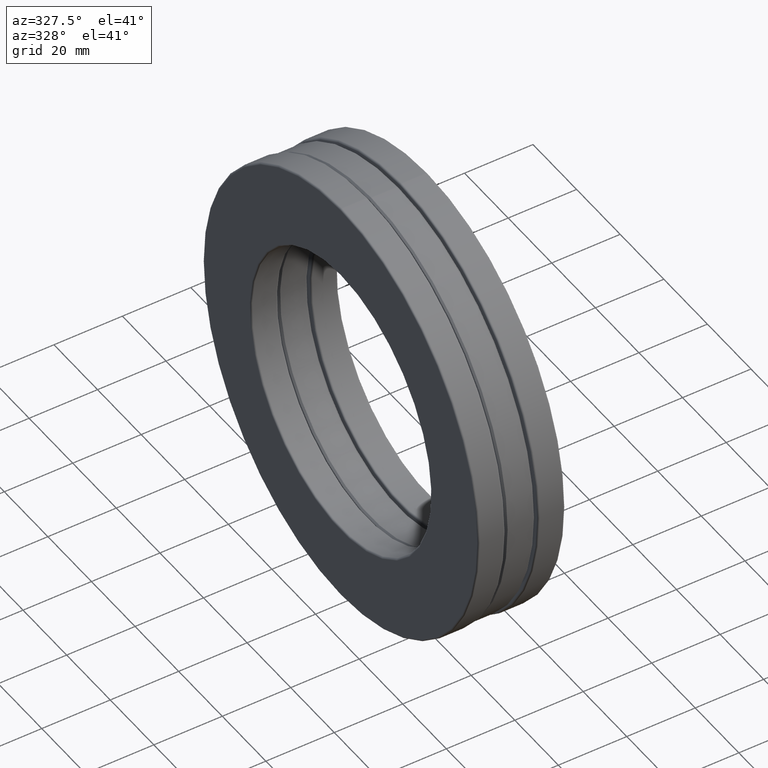
[diagram: clean part render]
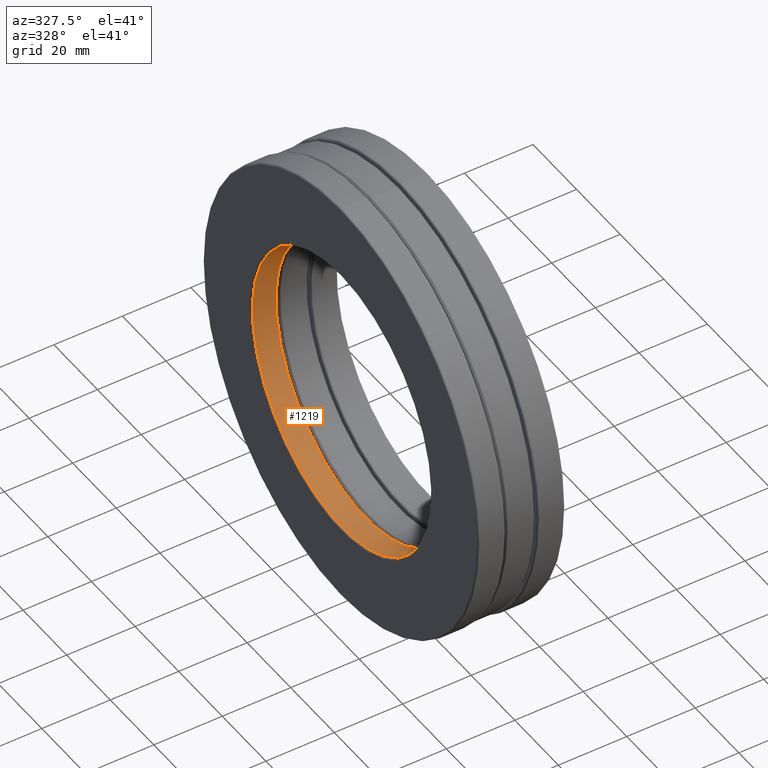
[diagram: same view with one face highlighted and labeled with its STEP entity id]
A machine part, auxiliary view. The second image highlights one B-rep face of the part: STEP entity #1219.
In plain terms, the highlighted cylindrical surface (bore or boss wall) has radius 41.275 mm, axis along (-1, -0, -0).
Its self-contained STEP definition (entity closure, byte-faithful):
#78 = CARTESIAN_POINT ( 'NONE',  ( -0.2074999999999999100, 0.0000000000000000000, 0.0000000000000000000 ) ) ;
#82 = EDGE_LOOP ( 'NONE', ( #946 ) ) ;
#99 = DIRECTION ( 'NONE',  ( -1.000000000000000000, -0.0000000000000000000, -0.0000000000000000000 ) ) ;
#133 = EDGE_LOOP ( 'NONE', ( #1377 ) ) ;
#266 = CARTESIAN_POINT ( 'NONE',  ( -0.4800000000000000900, 0.0000000000000000000, 1.625000000000000000 ) ) ;
#403 = FACE_OUTER_BOUND ( 'NONE', #133, .T. ) ;
#419 = CIRCLE ( 'NONE', #985, 1.625000000000000000 ) ;
#480 = CYLINDRICAL_SURFACE ( 'NONE', #1326, 1.625000000000000000 ) ;
#665 = VERTEX_POINT ( 'NONE', #266 ) ;
#769 = DIRECTION ( 'NONE',  ( 0.0000000000000000000, 0.0000000000000000000, 1.000000000000000000 ) ) ;
#807 = AXIS2_PLACEMENT_3D ( 'NONE', #1248, #917, #898 ) ;
#898 = DIRECTION ( 'NONE',  ( 0.0000000000000000000, 0.0000000000000000000, 1.000000000000000000 ) ) ;
#917 = DIRECTION ( 'NONE',  ( -1.000000000000000000, -0.0000000000000000000, -0.0000000000000000000 ) ) ;
#946 = ORIENTED_EDGE ( 'NONE', *, *, #1098, .F. ) ;
#985 = AXIS2_PLACEMENT_3D ( 'NONE', #78, #1085, #1200 ) ;
#1044 = CIRCLE ( 'NONE', #807, 1.625000000000000000 ) ;
#1078 = VERTEX_POINT ( 'NONE', #1368 ) ;
#1085 = DIRECTION ( 'NONE',  ( -1.000000000000000000, -0.0000000000000000000, -0.0000000000000000000 ) ) ;
#1098 = EDGE_CURVE ( 'NONE', #1078, #1078, #419, .T. ) ;
#1200 = DIRECTION ( 'NONE',  ( 0.0000000000000000000, 0.0000000000000000000, 1.000000000000000000 ) ) ;
#1206 = CARTESIAN_POINT ( 'NONE',  ( 0.0000000000000000000, 0.0000000000000000000, 0.0000000000000000000 ) ) ;
#1219 = ADVANCED_FACE ( 'NONE', ( #403, #1230 ), #480, .F. ) ;
#1230 = FACE_OUTER_BOUND ( 'NONE', #82, .T. ) ;
#1248 = CARTESIAN_POINT ( 'NONE',  ( -0.4800000000000000900, 0.0000000000000000000, 0.0000000000000000000 ) ) ;
#1256 = EDGE_CURVE ( 'NONE', #665, #665, #1044, .T. ) ;
#1326 = AXIS2_PLACEMENT_3D ( 'NONE', #1206, #99, #769 ) ;
#1368 = CARTESIAN_POINT ( 'NONE',  ( -0.2074999999999999100, 0.0000000000000000000, 1.625000000000000000 ) ) ;
#1377 = ORIENTED_EDGE ( 'NONE', *, *, #1256, .T. ) ;